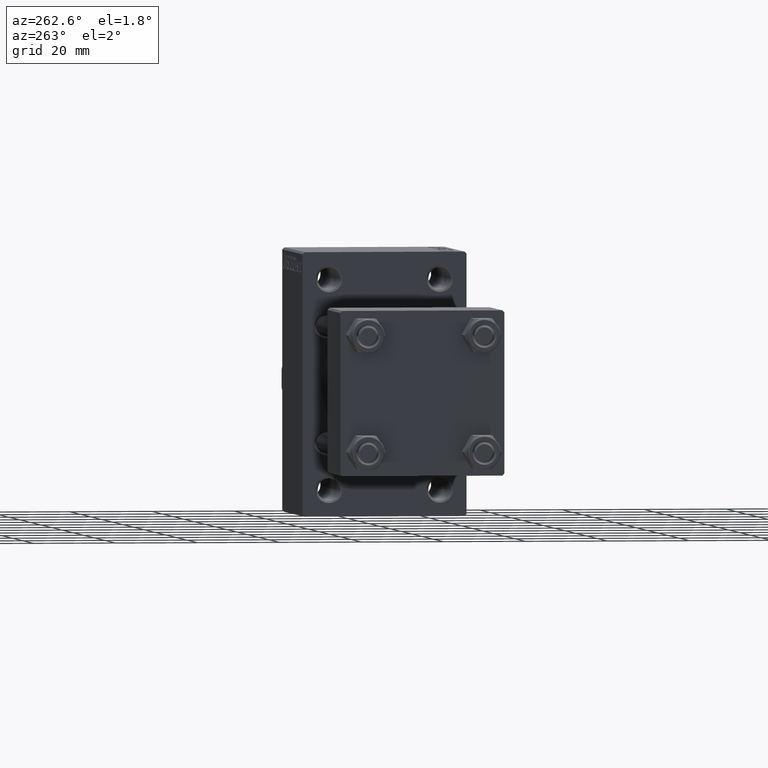
[diagram: clean part render]
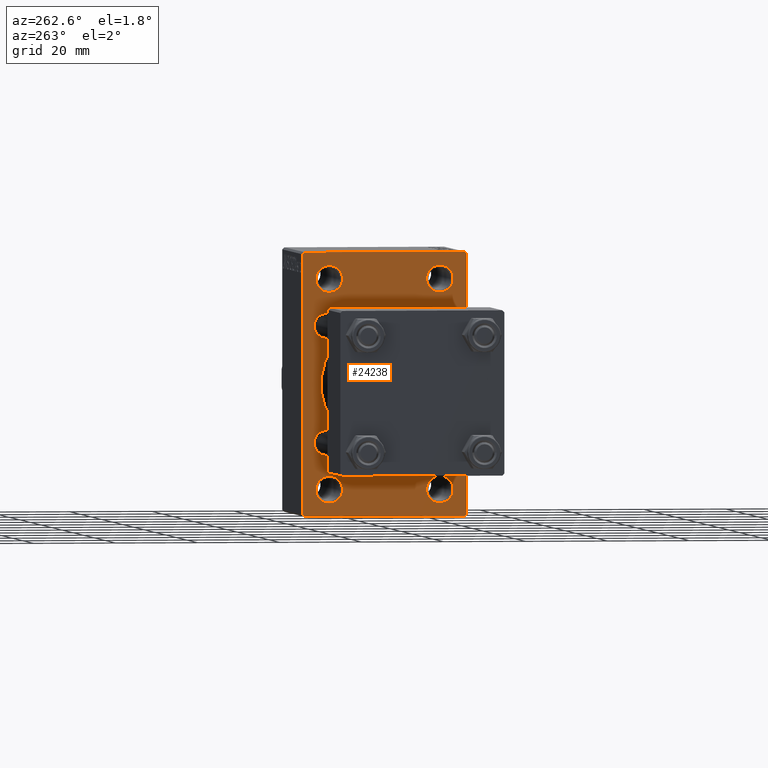
[diagram: same view with one face highlighted and labeled with its STEP entity id]
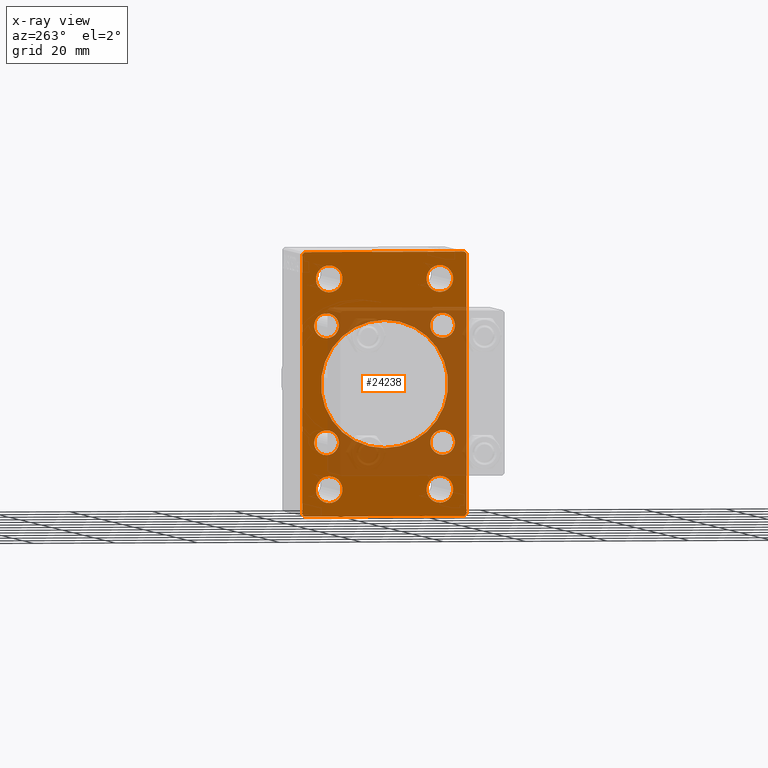
[diagram: x-ray of the same camera — body ghosted, the highlighted face saturated]
A machine part, auxiliary view. The second image highlights one B-rep face of the part: STEP entity #24238.
The next image is the same camera in x-ray: the body ghosted, the highlighted face saturated — about 36% of this face is hidden behind the body in this view.
In plain terms, the highlighted planar face has unit normal (-1, 0, 0).
Its self-contained STEP definition (entity closure, byte-faithful):
#303 = EDGE_CURVE ( 'NONE', #23593, #13095, #31177, .T. ) ;
#469 = CARTESIAN_POINT ( 'NONE',  ( 71.00000000000001421, -14.15000000000000036, 17.15000000000000568 ) ) ;
#526 = ORIENTED_EDGE ( 'NONE', *, *, #38385, .T. ) ;
#578 = AXIS2_PLACEMENT_3D ( 'NONE', #44013, #14243, #32246 ) ;
#830 = EDGE_CURVE ( 'NONE', #34226, #921, #6862, .T. ) ;
#921 = VERTEX_POINT ( 'NONE', #23657 ) ;
#1019 = ORIENTED_EDGE ( 'NONE', *, *, #43088, .T. ) ;
#1209 = VERTEX_POINT ( 'NONE', #45210 ) ;
#1219 = CIRCLE ( 'NONE', #28804, 3.000000000000004441 ) ;
#1232 = CARTESIAN_POINT ( 'NONE',  ( 71.00000000000001421, 13.49999999999999822, -22.24999999999998224 ) ) ;
#1445 = PLANE ( 'NONE',  #6650 ) ;
#1465 = CARTESIAN_POINT ( 'NONE',  ( 71.00000000000001421, 13.49999999999999822, 25.50000000000000355 ) ) ;
#1547 = CARTESIAN_POINT ( 'NONE',  ( 71.00000000000001421, 20.00000000000000000, 32.00000000000000000 ) ) ;
#1714 = ORIENTED_EDGE ( 'NONE', *, *, #303, .T. ) ;
#1938 = VERTEX_POINT ( 'NONE', #25305 ) ;
#1944 = CIRCLE ( 'NONE', #24191, 3.000000000000004441 ) ;
#2011 = CARTESIAN_POINT ( 'NONE',  ( 71.00000000000001421, 13.49999999999999822, -25.50000000000000000 ) ) ;
#2038 = EDGE_CURVE ( 'NONE', #921, #15292, #19749, .T. ) ;
#2176 = AXIS2_PLACEMENT_3D ( 'NONE', #31124, #11694, #26346 ) ;
#2746 = VECTOR ( 'NONE', #46835, 1000.000000000000114 ) ;
#2781 = CARTESIAN_POINT ( 'NONE',  ( 71.00000000000001421, 25.74999999999999645, -25.74999999999999645 ) ) ;
#2910 = CARTESIAN_POINT ( 'NONE',  ( 71.00000000000001421, 20.00000000000000000, 32.00000000000000000 ) ) ;
#2940 = CARTESIAN_POINT ( 'NONE',  ( 71.00000000000001421, 14.15000000000000036, 11.14999999999999680 ) ) ;
#3115 = CARTESIAN_POINT ( 'NONE',  ( 71.00000000000001421, 14.15000000000000036, -14.15000000000000036 ) ) ;
#3287 = ORIENTED_EDGE ( 'NONE', *, *, #25899, .T. ) ;
#3547 = CARTESIAN_POINT ( 'NONE',  ( 71.00000000000001421, -13.50000000000000178, 22.24999999999998579 ) ) ;
#4083 = DIRECTION ( 'NONE',  ( 0.000000000000000000, 0.000000000000000000, 1.000000000000000000 ) ) ;
#4516 = EDGE_CURVE ( 'NONE', #11523, #16326, #39214, .T. ) ;
#4585 = ORIENTED_EDGE ( 'NONE', *, *, #37251, .T. ) ;
#4692 = EDGE_LOOP ( 'NONE', ( #31492, #20106 ) ) ;
#4807 = EDGE_CURVE ( 'NONE', #42209, #16007, #6252, .T. ) ;
#4989 = CARTESIAN_POINT ( 'NONE',  ( 71.00000000000001421, -14.15000000000000036, -14.15000000000000036 ) ) ;
#5220 = EDGE_CURVE ( 'NONE', #15912, #1209, #18547, .T. ) ;
#5385 = EDGE_CURVE ( 'NONE', #13191, #27529, #19290, .T. ) ;
#5639 = EDGE_LOOP ( 'NONE', ( #1714, #39101 ) ) ;
#5696 = AXIS2_PLACEMENT_3D ( 'NONE', #1465, #30046, #44929 ) ;
#6252 = CIRCLE ( 'NONE', #14708, 15.50000000000000000 ) ;
#6354 = CARTESIAN_POINT ( 'NONE',  ( 71.00000000000001421, -14.15000000000000036, 11.14999999999999503 ) ) ;
#6400 = EDGE_CURVE ( 'NONE', #13095, #23593, #29305, .T. ) ;
#6433 = VERTEX_POINT ( 'NONE', #7014 ) ;
#6650 = AXIS2_PLACEMENT_3D ( 'NONE', #37919, #26668, #33632 ) ;
#6679 = CARTESIAN_POINT ( 'NONE',  ( 71.00000000000001421, -13.50000000000000178, 25.50000000000000355 ) ) ;
#6862 = LINE ( 'NONE', #44094, #42690 ) ;
#6947 = DIRECTION ( 'NONE',  ( 1.000000000000000000, 0.000000000000000000, 0.000000000000000000 ) ) ;
#7014 = CARTESIAN_POINT ( 'NONE',  ( 71.00000000000001421, -14.15000000000000036, -11.14999999999999680 ) ) ;
#7086 = DIRECTION ( 'NONE',  ( 0.000000000000000000, 0.000000000000000000, 1.000000000000000000 ) ) ;
#7151 = DIRECTION ( 'NONE',  ( 1.000000000000000000, 0.000000000000000000, 0.000000000000000000 ) ) ;
#7248 = DIRECTION ( 'NONE',  ( 1.000000000000000000, 0.000000000000000000, 0.000000000000000000 ) ) ;
#7492 = CARTESIAN_POINT ( 'NONE',  ( 71.00000000000001421, -13.50000000000000533, -25.49999999999999645 ) ) ;
#7536 = VERTEX_POINT ( 'NONE', #10332 ) ;
#7665 = CARTESIAN_POINT ( 'NONE',  ( 71.00000000000001421, -2.602085213965210642E-15, 15.50000000000000000 ) ) ;
#7956 = CARTESIAN_POINT ( 'NONE',  ( 71.00000000000001421, -20.00000000000000000, 31.49999999999997868 ) ) ;
#8404 = FACE_BOUND ( 'NONE', #30204, .T. ) ;
#8506 = ORIENTED_EDGE ( 'NONE', *, *, #44601, .T. ) ;
#8523 = DIRECTION ( 'NONE',  ( 0.000000000000000000, 0.000000000000000000, 1.000000000000000000 ) ) ;
#8693 = CARTESIAN_POINT ( 'NONE',  ( 71.00000000000001421, -25.75000000000012790, -25.74999999999977263 ) ) ;
#8737 = LINE ( 'NONE', #1547, #36662 ) ;
#9021 = CARTESIAN_POINT ( 'NONE',  ( 71.00000000000001421, -20.00000000000000000, -31.49999999999997868 ) ) ;
#9555 = EDGE_CURVE ( 'NONE', #35277, #1938, #40355, .T. ) ;
#9924 = DIRECTION ( 'NONE',  ( 1.000000000000000000, 0.000000000000000000, 0.000000000000000000 ) ) ;
#10075 = CARTESIAN_POINT ( 'NONE',  ( 71.00000000000001421, -7.038826752868131828E-16, -15.50000000000000000 ) ) ;
#10332 = CARTESIAN_POINT ( 'NONE',  ( 71.00000000000001421, -13.50000000000000178, 28.75000000000001776 ) ) ;
#10754 = DIRECTION ( 'NONE',  ( 0.000000000000000000, 0.000000000000000000, -1.000000000000000000 ) ) ;
#10891 = ORIENTED_EDGE ( 'NONE', *, *, #28350, .T. ) ;
#11335 = AXIS2_PLACEMENT_3D ( 'NONE', #6679, #7151, #42951 ) ;
#11402 = CIRCLE ( 'NONE', #34386, 3.250000000000016875 ) ;
#11523 = VERTEX_POINT ( 'NONE', #13891 ) ;
#11534 = CARTESIAN_POINT ( 'NONE',  ( 71.00000000000001421, 13.49999999999999822, -25.50000000000000000 ) ) ;
#11636 = EDGE_CURVE ( 'NONE', #36999, #6433, #20141, .T. ) ;
#11694 = DIRECTION ( 'NONE',  ( 1.000000000000000000, 0.000000000000000000, 0.000000000000000000 ) ) ;
#11876 = ORIENTED_EDGE ( 'NONE', *, *, #830, .T. ) ;
#12355 = ORIENTED_EDGE ( 'NONE', *, *, #4516, .T. ) ;
#12486 = FACE_BOUND ( 'NONE', #5639, .T. ) ;
#13056 = CARTESIAN_POINT ( 'NONE',  ( 71.00000000000001421, 25.74999999999999645, 25.74999999999999645 ) ) ;
#13095 = VERTEX_POINT ( 'NONE', #2940 ) ;
#13191 = VERTEX_POINT ( 'NONE', #37015 ) ;
#13240 = DIRECTION ( 'NONE',  ( 1.000000000000000000, 0.000000000000000000, 0.000000000000000000 ) ) ;
#13837 = DIRECTION ( 'NONE',  ( 0.000000000000000000, 0.000000000000000000, 1.000000000000000000 ) ) ;
#13852 = EDGE_CURVE ( 'NONE', #1209, #15912, #37070, .T. ) ;
#13891 = CARTESIAN_POINT ( 'NONE',  ( 71.00000000000001421, 13.49999999999999822, 22.24999999999998934 ) ) ;
#13976 = ORIENTED_EDGE ( 'NONE', *, *, #25920, .T. ) ;
#14243 = DIRECTION ( 'NONE',  ( 1.000000000000000000, 0.000000000000000000, 0.000000000000000000 ) ) ;
#14272 = ORIENTED_EDGE ( 'NONE', *, *, #19062, .T. ) ;
#14366 = ORIENTED_EDGE ( 'NONE', *, *, #11636, .T. ) ;
#14666 = DIRECTION ( 'NONE',  ( 1.000000000000000000, 0.000000000000000000, 0.000000000000000000 ) ) ;
#14708 = AXIS2_PLACEMENT_3D ( 'NONE', #27700, #9924, #17839 ) ;
#14850 = VECTOR ( 'NONE', #32816, 1000.000000000000000 ) ;
#15292 = VERTEX_POINT ( 'NONE', #9021 ) ;
#15347 = ORIENTED_EDGE ( 'NONE', *, *, #32719, .F. ) ;
#15819 = DIRECTION ( 'NONE',  ( 1.000000000000000000, 0.000000000000000000, 0.000000000000000000 ) ) ;
#15912 = VERTEX_POINT ( 'NONE', #1232 ) ;
#16007 = VERTEX_POINT ( 'NONE', #10075 ) ;
#16326 = VERTEX_POINT ( 'NONE', #26068 ) ;
#16673 = DIRECTION ( 'NONE',  ( 0.000000000000000000, 0.000000000000000000, 1.000000000000000000 ) ) ;
#16794 = CIRCLE ( 'NONE', #2176, 3.000000000000004441 ) ;
#17833 = DIRECTION ( 'NONE',  ( 1.000000000000000000, 0.000000000000000000, 0.000000000000000000 ) ) ;
#17839 = DIRECTION ( 'NONE',  ( 0.000000000000000000, 0.000000000000000000, -1.000000000000000000 ) ) ;
#18002 = CARTESIAN_POINT ( 'NONE',  ( 71.00000000000001421, -2.602085213965210642E-15, 0.000000000000000000 ) ) ;
#18081 = DIRECTION ( 'NONE',  ( -0.000000000000000000, 0.7071067811865474617, 0.7071067811865474617 ) ) ;
#18173 = LINE ( 'NONE', #29451, #14850 ) ;
#18179 = EDGE_CURVE ( 'NONE', #32189, #22897, #1944, .T. ) ;
#18490 = DIRECTION ( 'NONE',  ( 0.000000000000000000, 0.000000000000000000, -1.000000000000000000 ) ) ;
#18547 = CIRCLE ( 'NONE', #44606, 3.250000000000016875 ) ;
#18758 = FACE_OUTER_BOUND ( 'NONE', #27727, .T. ) ;
#18997 = FACE_BOUND ( 'NONE', #38907, .T. ) ;
#19062 = EDGE_CURVE ( 'NONE', #37858, #21718, #1219, .T. ) ;
#19290 = CIRCLE ( 'NONE', #23119, 3.250000000000016875 ) ;
#19688 = FACE_BOUND ( 'NONE', #38865, .T. ) ;
#19749 = LINE ( 'NONE', #8693, #22780 ) ;
#20106 = ORIENTED_EDGE ( 'NONE', *, *, #42249, .T. ) ;
#20141 = CIRCLE ( 'NONE', #30126, 3.000000000000004441 ) ;
#20250 = LINE ( 'NONE', #13056, #2746 ) ;
#20451 = CARTESIAN_POINT ( 'NONE',  ( 71.00000000000001421, 14.15000000000000036, -14.15000000000000036 ) ) ;
#21718 = VERTEX_POINT ( 'NONE', #6354 ) ;
#22706 = AXIS2_PLACEMENT_3D ( 'NONE', #18002, #29528, #18490 ) ;
#22780 = VECTOR ( 'NONE', #29870, 1000.000000000000000 ) ;
#22897 = VERTEX_POINT ( 'NONE', #35611 ) ;
#23119 = AXIS2_PLACEMENT_3D ( 'NONE', #23935, #38562, #7086 ) ;
#23509 = EDGE_CURVE ( 'NONE', #43426, #7536, #35862, .T. ) ;
#23593 = VERTEX_POINT ( 'NONE', #28776 ) ;
#23657 = CARTESIAN_POINT ( 'NONE',  ( 71.00000000000001421, -19.49999999999998579, -32.00000000000000000 ) ) ;
#23746 = CIRCLE ( 'NONE', #35217, 3.000000000000004441 ) ;
#23935 = CARTESIAN_POINT ( 'NONE',  ( 71.00000000000001421, -13.50000000000000533, -25.49999999999999645 ) ) ;
#24171 = LINE ( 'NONE', #2781, #33512 ) ;
#24191 = AXIS2_PLACEMENT_3D ( 'NONE', #3115, #6947, #35528 ) ;
#24238 = ADVANCED_FACE ( 'NONE', ( #45381, #30735, #44457, #18997, #19688, #12486, #8404, #41307, #27122, #18758 ), #1445, .T. ) ;
#24747 = DIRECTION ( 'NONE',  ( 0.000000000000000000, 0.000000000000000000, 1.000000000000000000 ) ) ;
#25036 = CARTESIAN_POINT ( 'NONE',  ( 71.00000000000001421, 14.15000000000000036, 14.15000000000000036 ) ) ;
#25040 = ORIENTED_EDGE ( 'NONE', *, *, #23509, .T. ) ;
#25239 = DIRECTION ( 'NONE',  ( 0.000000000000000000, -1.000000000000000000, -1.734723475976807094E-16 ) ) ;
#25277 = DIRECTION ( 'NONE',  ( 0.000000000000000000, 0.000000000000000000, 1.000000000000000000 ) ) ;
#25305 = CARTESIAN_POINT ( 'NONE',  ( 71.00000000000001421, -19.49999999999998579, 31.99999999999999289 ) ) ;
#25419 = AXIS2_PLACEMENT_3D ( 'NONE', #46732, #39739, #13837 ) ;
#25872 = CIRCLE ( 'NONE', #578, 3.000000000000004441 ) ;
#25899 = EDGE_CURVE ( 'NONE', #27946, #1938, #32480, .T. ) ;
#25920 = EDGE_CURVE ( 'NONE', #6433, #36999, #25872, .T. ) ;
#26068 = CARTESIAN_POINT ( 'NONE',  ( 71.00000000000001421, 13.49999999999999822, 28.75000000000002132 ) ) ;
#26346 = DIRECTION ( 'NONE',  ( 0.000000000000000000, 0.000000000000000000, 1.000000000000000000 ) ) ;
#26644 = DIRECTION ( 'NONE',  ( 1.000000000000000000, 0.000000000000000000, 0.000000000000000000 ) ) ;
#26668 = DIRECTION ( 'NONE',  ( -1.000000000000000000, 0.000000000000000000, -0.000000000000000000 ) ) ;
#26719 = CARTESIAN_POINT ( 'NONE',  ( 71.00000000000001421, 14.15000000000000036, 14.15000000000000036 ) ) ;
#26795 = CARTESIAN_POINT ( 'NONE',  ( 71.00000000000001421, -13.50000000000000178, 25.50000000000000355 ) ) ;
#26900 = ORIENTED_EDGE ( 'NONE', *, *, #5220, .T. ) ;
#27122 = FACE_BOUND ( 'NONE', #4692, .T. ) ;
#27377 = ORIENTED_EDGE ( 'NONE', *, *, #5385, .T. ) ;
#27529 = VERTEX_POINT ( 'NONE', #40763 ) ;
#27577 = EDGE_LOOP ( 'NONE', ( #13976, #14366 ) ) ;
#27700 = CARTESIAN_POINT ( 'NONE',  ( 71.00000000000001421, -2.602085213965210642E-15, 0.000000000000000000 ) ) ;
#27727 = EDGE_LOOP ( 'NONE', ( #11876, #46465, #15347, #3287, #41992, #1019, #29556, #8506 ) ) ;
#27946 = VERTEX_POINT ( 'NONE', #7956 ) ;
#28350 = EDGE_CURVE ( 'NONE', #27529, #13191, #11402, .T. ) ;
#28704 = CIRCLE ( 'NONE', #5696, 3.250000000000016875 ) ;
#28776 = CARTESIAN_POINT ( 'NONE',  ( 71.00000000000001421, 14.15000000000000036, 17.15000000000000568 ) ) ;
#28804 = AXIS2_PLACEMENT_3D ( 'NONE', #37663, #26644, #36960 ) ;
#29149 = EDGE_CURVE ( 'NONE', #21718, #37858, #16794, .T. ) ;
#29305 = CIRCLE ( 'NONE', #38460, 3.000000000000004441 ) ;
#29324 = CARTESIAN_POINT ( 'NONE',  ( 71.00000000000001421, 14.15000000000000036, -11.14999999999999680 ) ) ;
#29340 = CARTESIAN_POINT ( 'NONE',  ( 71.00000000000001421, 20.00000000000000000, -31.49999999999998579 ) ) ;
#29451 = CARTESIAN_POINT ( 'NONE',  ( 71.00000000000001421, -20.00000000000000000, 31.99999999999999289 ) ) ;
#29528 = DIRECTION ( 'NONE',  ( 1.000000000000000000, 0.000000000000000000, 0.000000000000000000 ) ) ;
#29556 = ORIENTED_EDGE ( 'NONE', *, *, #47232, .T. ) ;
#29870 = DIRECTION ( 'NONE',  ( 0.000000000000000000, -0.7071067811865426878, 0.7071067811865524577 ) ) ;
#30046 = DIRECTION ( 'NONE',  ( 1.000000000000000000, 0.000000000000000000, 0.000000000000000000 ) ) ;
#30126 = AXIS2_PLACEMENT_3D ( 'NONE', #4989, #15819, #30461 ) ;
#30204 = EDGE_LOOP ( 'NONE', ( #40352, #46125 ) ) ;
#30277 = EDGE_LOOP ( 'NONE', ( #4585, #25040 ) ) ;
#30461 = DIRECTION ( 'NONE',  ( 0.000000000000000000, 0.000000000000000000, 1.000000000000000000 ) ) ;
#30686 = EDGE_CURVE ( 'NONE', #22897, #32189, #23746, .T. ) ;
#30735 = FACE_BOUND ( 'NONE', #44468, .T. ) ;
#31124 = CARTESIAN_POINT ( 'NONE',  ( 71.00000000000001421, -14.15000000000000036, 14.15000000000000036 ) ) ;
#31177 = CIRCLE ( 'NONE', #35749, 3.000000000000004441 ) ;
#31492 = ORIENTED_EDGE ( 'NONE', *, *, #4807, .T. ) ;
#32189 = VERTEX_POINT ( 'NONE', #29324 ) ;
#32246 = DIRECTION ( 'NONE',  ( 0.000000000000000000, 0.000000000000000000, 1.000000000000000000 ) ) ;
#32480 = LINE ( 'NONE', #40642, #46570 ) ;
#32719 = EDGE_CURVE ( 'NONE', #27946, #15292, #18173, .T. ) ;
#32808 = DIRECTION ( 'NONE',  ( 0.000000000000000000, -1.000000000000000000, 0.000000000000000000 ) ) ;
#32816 = DIRECTION ( 'NONE',  ( 0.000000000000000000, 0.000000000000000000, -1.000000000000000000 ) ) ;
#33180 = DIRECTION ( 'NONE',  ( 0.000000000000000000, 0.000000000000000000, 1.000000000000000000 ) ) ;
#33512 = VECTOR ( 'NONE', #42886, 1000.000000000000114 ) ;
#33632 = DIRECTION ( 'NONE',  ( -0.000000000000000000, 0.000000000000000000, 1.000000000000000000 ) ) ;
#33909 = DIRECTION ( 'NONE',  ( 0.000000000000000000, 0.000000000000000000, 1.000000000000000000 ) ) ;
#34226 = VERTEX_POINT ( 'NONE', #34690 ) ;
#34386 = AXIS2_PLACEMENT_3D ( 'NONE', #7492, #7248, #33180 ) ;
#34690 = CARTESIAN_POINT ( 'NONE',  ( 71.00000000000001421, 19.49999999999998579, -32.00000000000000000 ) ) ;
#34810 = CARTESIAN_POINT ( 'NONE',  ( 71.00000000000001421, 20.00000000000000000, 31.49999999999998579 ) ) ;
#34891 = DIRECTION ( 'NONE',  ( 1.000000000000000000, 0.000000000000000000, 0.000000000000000000 ) ) ;
#34902 = CIRCLE ( 'NONE', #36447, 3.250000000000016875 ) ;
#35217 = AXIS2_PLACEMENT_3D ( 'NONE', #20451, #13240, #24747 ) ;
#35277 = VERTEX_POINT ( 'NONE', #42863 ) ;
#35528 = DIRECTION ( 'NONE',  ( 0.000000000000000000, 0.000000000000000000, 1.000000000000000000 ) ) ;
#35611 = CARTESIAN_POINT ( 'NONE',  ( 71.00000000000001421, 14.15000000000000036, -17.15000000000000568 ) ) ;
#35749 = AXIS2_PLACEMENT_3D ( 'NONE', #26719, #41358, #33909 ) ;
#35862 = CIRCLE ( 'NONE', #11335, 3.250000000000016875 ) ;
#36447 = AXIS2_PLACEMENT_3D ( 'NONE', #26795, #41433, #8523 ) ;
#36662 = VECTOR ( 'NONE', #10754, 1000.000000000000000 ) ;
#36960 = DIRECTION ( 'NONE',  ( 0.000000000000000000, 0.000000000000000000, 1.000000000000000000 ) ) ;
#36999 = VERTEX_POINT ( 'NONE', #46280 ) ;
#37015 = CARTESIAN_POINT ( 'NONE',  ( 71.00000000000001421, -13.50000000000000533, -28.75000000000001066 ) ) ;
#37070 = CIRCLE ( 'NONE', #46302, 3.250000000000016875 ) ;
#37251 = EDGE_CURVE ( 'NONE', #7536, #43426, #34902, .T. ) ;
#37663 = CARTESIAN_POINT ( 'NONE',  ( 71.00000000000001421, -14.15000000000000036, 14.15000000000000036 ) ) ;
#37858 = VERTEX_POINT ( 'NONE', #469 ) ;
#37919 = CARTESIAN_POINT ( 'NONE',  ( 71.00000000000001421, 0.000000000000000000, 0.000000000000000000 ) ) ;
#38385 = EDGE_CURVE ( 'NONE', #16326, #11523, #28704, .T. ) ;
#38460 = AXIS2_PLACEMENT_3D ( 'NONE', #25036, #17833, #25277 ) ;
#38562 = DIRECTION ( 'NONE',  ( 1.000000000000000000, 0.000000000000000000, 0.000000000000000000 ) ) ;
#38865 = EDGE_LOOP ( 'NONE', ( #14272, #46696 ) ) ;
#38907 = EDGE_LOOP ( 'NONE', ( #526, #12355 ) ) ;
#39101 = ORIENTED_EDGE ( 'NONE', *, *, #6400, .T. ) ;
#39214 = CIRCLE ( 'NONE', #25419, 3.250000000000016875 ) ;
#39739 = DIRECTION ( 'NONE',  ( 1.000000000000000000, 0.000000000000000000, 0.000000000000000000 ) ) ;
#40352 = ORIENTED_EDGE ( 'NONE', *, *, #18179, .T. ) ;
#40355 = LINE ( 'NONE', #2910, #44723 ) ;
#40642 = CARTESIAN_POINT ( 'NONE',  ( 71.00000000000001421, -25.74999999999998934, 25.74999999999998934 ) ) ;
#40763 = CARTESIAN_POINT ( 'NONE',  ( 71.00000000000001421, -13.50000000000000533, -22.24999999999997868 ) ) ;
#40780 = VERTEX_POINT ( 'NONE', #34810 ) ;
#41307 = FACE_BOUND ( 'NONE', #27577, .T. ) ;
#41358 = DIRECTION ( 'NONE',  ( 1.000000000000000000, 0.000000000000000000, 0.000000000000000000 ) ) ;
#41433 = DIRECTION ( 'NONE',  ( 1.000000000000000000, 0.000000000000000000, 0.000000000000000000 ) ) ;
#41541 = VERTEX_POINT ( 'NONE', #29340 ) ;
#41992 = ORIENTED_EDGE ( 'NONE', *, *, #9555, .F. ) ;
#42209 = VERTEX_POINT ( 'NONE', #7665 ) ;
#42249 = EDGE_CURVE ( 'NONE', #16007, #42209, #42614, .T. ) ;
#42614 = CIRCLE ( 'NONE', #22706, 15.50000000000000000 ) ;
#42618 = ORIENTED_EDGE ( 'NONE', *, *, #13852, .T. ) ;
#42690 = VECTOR ( 'NONE', #32808, 1000.000000000000000 ) ;
#42821 = EDGE_LOOP ( 'NONE', ( #26900, #42618 ) ) ;
#42863 = CARTESIAN_POINT ( 'NONE',  ( 71.00000000000001421, 19.49999999999998579, 32.00000000000000000 ) ) ;
#42886 = DIRECTION ( 'NONE',  ( -0.000000000000000000, -0.7071067811865474617, -0.7071067811865474617 ) ) ;
#42951 = DIRECTION ( 'NONE',  ( 0.000000000000000000, 0.000000000000000000, 1.000000000000000000 ) ) ;
#43088 = EDGE_CURVE ( 'NONE', #35277, #40780, #20250, .T. ) ;
#43426 = VERTEX_POINT ( 'NONE', #3547 ) ;
#44013 = CARTESIAN_POINT ( 'NONE',  ( 71.00000000000001421, -14.15000000000000036, -14.15000000000000036 ) ) ;
#44094 = CARTESIAN_POINT ( 'NONE',  ( 71.00000000000001421, 20.00000000000000000, -32.00000000000000000 ) ) ;
#44457 = FACE_BOUND ( 'NONE', #42821, .T. ) ;
#44468 = EDGE_LOOP ( 'NONE', ( #10891, #27377 ) ) ;
#44601 = EDGE_CURVE ( 'NONE', #41541, #34226, #24171, .T. ) ;
#44606 = AXIS2_PLACEMENT_3D ( 'NONE', #11534, #14666, #4083 ) ;
#44723 = VECTOR ( 'NONE', #25239, 1000.000000000000000 ) ;
#44929 = DIRECTION ( 'NONE',  ( 0.000000000000000000, 0.000000000000000000, 1.000000000000000000 ) ) ;
#45210 = CARTESIAN_POINT ( 'NONE',  ( 71.00000000000001421, 13.49999999999999822, -28.75000000000001421 ) ) ;
#45381 = FACE_BOUND ( 'NONE', #30277, .T. ) ;
#46125 = ORIENTED_EDGE ( 'NONE', *, *, #30686, .T. ) ;
#46280 = CARTESIAN_POINT ( 'NONE',  ( 71.00000000000001421, -14.15000000000000036, -17.15000000000000568 ) ) ;
#46302 = AXIS2_PLACEMENT_3D ( 'NONE', #2011, #34891, #16673 ) ;
#46465 = ORIENTED_EDGE ( 'NONE', *, *, #2038, .T. ) ;
#46570 = VECTOR ( 'NONE', #18081, 1000.000000000000114 ) ;
#46696 = ORIENTED_EDGE ( 'NONE', *, *, #29149, .T. ) ;
#46732 = CARTESIAN_POINT ( 'NONE',  ( 71.00000000000001421, 13.49999999999999822, 25.50000000000000355 ) ) ;
#46835 = DIRECTION ( 'NONE',  ( 0.000000000000000000, 0.7071067811865474617, -0.7071067811865474617 ) ) ;
#47232 = EDGE_CURVE ( 'NONE', #40780, #41541, #8737, .T. ) ;